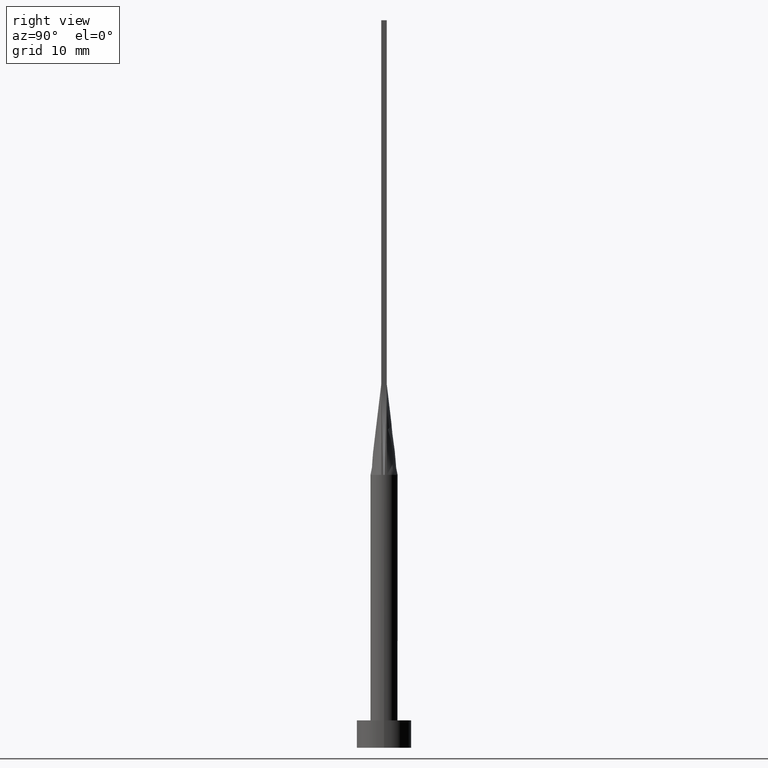
[diagram: clean part render]
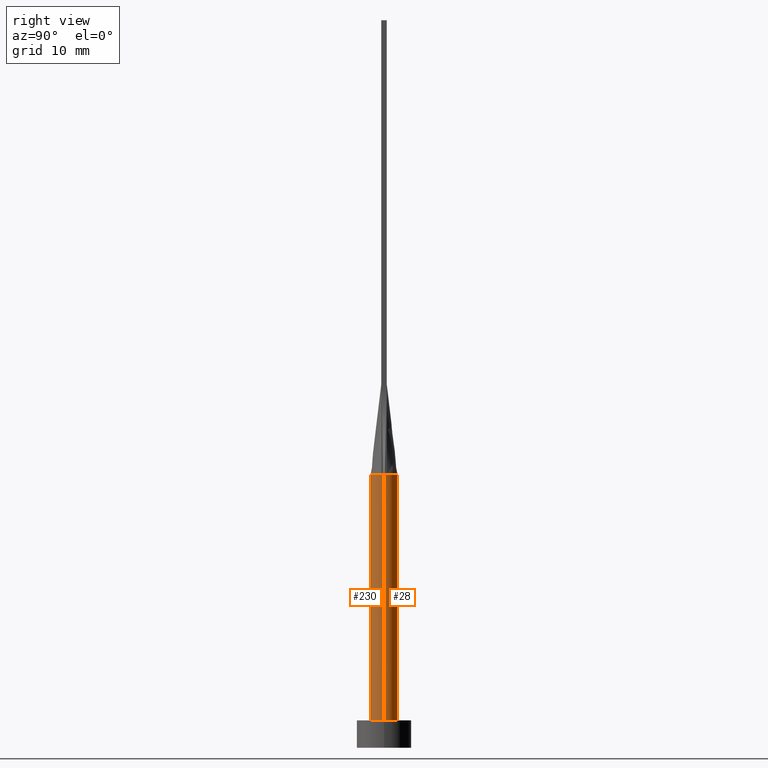
[diagram: same view with one multi-face feature highlighted, each face labeled with its STEP entity id]
A machine part, right view. The highlighted faces form ONE feature: a constant-radius fillet chain: 2 tangent blend faces with common blend radius 1.5 mm. The faces share edges in the B-rep.
Their STEP definitions:
[1] entity #28 (Cylinder):
#2 = CARTESIAN_POINT ( 'NONE',  ( 1.499815225192203672, 3.473831651285826596E-16, 30.00000000000000000 ) ) ;
#8 = VERTEX_POINT ( 'NONE', #163 ) ;
#10 = CARTESIAN_POINT ( 'NONE',  ( 1.500000000000000222, 1.836970198721030181E-16, 30.00000000000000000 ) ) ;
#14 = CIRCLE ( 'NONE', #216, 1.500000000000000222 ) ;
#22 = VERTEX_POINT ( 'NONE', #295 ) ;
#26 = CARTESIAN_POINT ( 'NONE',  ( 1.466825456746648992, 0.3143198820638501978, 30.00000000000000000 ) ) ;
#28 = ADVANCED_FACE ( 'NONE', ( #326 ), #504, .T. ) ;
#30 = VERTEX_POINT ( 'NONE', #244 ) ;
#31 = CARTESIAN_POINT ( 'NONE',  ( 1.261673556793541540, 0.8246322331683844098, 29.99999999999998579 ) ) ;
#36 = CARTESIAN_POINT ( 'NONE',  ( 1.398339371956842880, 0.5625704264602660043, 29.99999999999999645 ) ) ;
#37 = DIRECTION ( 'NONE',  ( -0.000000000000000000, -0.000000000000000000, -1.000000000000000000 ) ) ;
#43 = EDGE_LOOP ( 'NONE', ( #205, #306, #133, #379, #442, #116 ) ) ;
#54 = AXIS2_PLACEMENT_3D ( 'NONE', #106, #287, #465 ) ;
#61 = DIRECTION ( 'NONE',  ( 1.000000000000000000, 0.000000000000000000, 0.000000000000000000 ) ) ;
#73 = VERTEX_POINT ( 'NONE', #269 ) ;
#78 = CARTESIAN_POINT ( 'NONE',  ( -0.9173979595380679086, 1.199399801402030397, 30.00000000000000000 ) ) ;
#80 = EDGE_CURVE ( 'NONE', #8, #73, #444, .T. ) ;
#89 = VERTEX_POINT ( 'NONE', #170 ) ;
#97 = DIRECTION ( 'NONE',  ( 0.000000000000000000, 0.000000000000000000, 1.000000000000000000 ) ) ;
#106 = CARTESIAN_POINT ( 'NONE',  ( 0.000000000000000000, 0.000000000000000000, 30.00000000000000000 ) ) ;
#109 = DIRECTION ( 'NONE',  ( 1.000000000000000000, 0.000000000000000000, 0.000000000000000000 ) ) ;
#116 = ORIENTED_EDGE ( 'NONE', *, *, #187, .F. ) ;
#119 = B_SPLINE_CURVE_WITH_KNOTS ( 'NONE', 3,
 ( #26, #168, #36, #31, #122, #345, #397, #218, #481, #572, #212, #213, #78, #259, #437, #520, #568, #172 ),
 .UNSPECIFIED., .F., .F.,
 ( 4, 2, 2, 2, 2, 2, 2, 2, 4 ),
 ( 0.000000000000000000, 0.1249999999999999445, 0.2499999999999998890, 0.3749999999999998890, 0.4999999999999998890, 0.6249999999999998890, 0.7500000000000000000, 0.8749999999999998890, 1.000000000000000000 ),
 .UNSPECIFIED. ) ;
#122 = CARTESIAN_POINT ( 'NONE',  ( 1.167251067653077401, 0.9579686032593092149, 30.00000000000000355 ) ) ;
#132 = CARTESIAN_POINT ( 'NONE',  ( -1.500000000000000222, 0.000000000000000000, 30.00000000000000000 ) ) ;
#133 = ORIENTED_EDGE ( 'NONE', *, *, #349, .T. ) ;
#153 = EDGE_CURVE ( 'NONE', #356, #30, #435, .T. ) ;
#163 = CARTESIAN_POINT ( 'NONE',  ( -1.499815225192203672, -3.718617114388451945E-16, 30.00000000000000000 ) ) ;
#168 = CARTESIAN_POINT ( 'NONE',  ( 1.441093865018553410, 0.4338058282182615244, 30.00000000000000711 ) ) ;
#170 = CARTESIAN_POINT ( 'NONE',  ( 1.500000000000000222, 1.836970198721030181E-16, 3.000000000000000000 ) ) ;
#172 = CARTESIAN_POINT ( 'NONE',  ( -1.466842056764351865, 0.3143233427268645186, 30.00000000000000000 ) ) ;
#180 = AXIS2_PLACEMENT_3D ( 'NONE', #387, #301, #260 ) ;
#187 = EDGE_CURVE ( 'NONE', #30, #22, #119, .T. ) ;
#205 = ORIENTED_EDGE ( 'NONE', *, *, #153, .F. ) ;
#212 = CARTESIAN_POINT ( 'NONE',  ( -0.4035854070682471928, 1.457676878506885432, 30.00000000000000711 ) ) ;
#213 = CARTESIAN_POINT ( 'NONE',  ( -0.7614511870148460426, 1.306864626778804661, 30.00000000000001776 ) ) ;
#216 = AXIS2_PLACEMENT_3D ( 'NONE', #234, #97, #61 ) ;
#218 = CARTESIAN_POINT ( 'NONE',  ( 0.4035854070682468042, 1.457676878506885654, 30.00000000000000000 ) ) ;
#234 = CARTESIAN_POINT ( 'NONE',  ( 0.000000000000000000, 0.000000000000000000, 3.000000000000000000 ) ) ;
#244 = CARTESIAN_POINT ( 'NONE',  ( 1.466825456746648992, 0.3143198820638501978, 30.00000000000000000 ) ) ;
#259 = CARTESIAN_POINT ( 'NONE',  ( -1.167251067653078289, 0.9579686032593087708, 30.00000000000001776 ) ) ;
#260 = DIRECTION ( 'NONE',  ( 1.000000000000000000, 0.000000000000000000, 0.000000000000000000 ) ) ;
#269 = CARTESIAN_POINT ( 'NONE',  ( -1.500000000000000222, 0.000000000000000000, 3.000000000000000000 ) ) ;
#287 = DIRECTION ( 'NONE',  ( -0.000000000000000000, -0.000000000000000000, -1.000000000000000000 ) ) ;
#295 = CARTESIAN_POINT ( 'NONE',  ( -1.466842056764351865, 0.3143233427268645186, 30.00000000000000000 ) ) ;
#296 = EDGE_CURVE ( 'NONE', #22, #8, #563, .T. ) ;
#301 = DIRECTION ( 'NONE',  ( 0.000000000000000000, 0.000000000000000000, 1.000000000000000000 ) ) ;
#306 = ORIENTED_EDGE ( 'NONE', *, *, #438, .T. ) ;
#326 = FACE_OUTER_BOUND ( 'NONE', #43, .T. ) ;
#345 = CARTESIAN_POINT ( 'NONE',  ( 0.9173979595380679086, 1.199399801402031285, 30.00000000000001066 ) ) ;
#349 = EDGE_CURVE ( 'NONE', #89, #73, #14, .T. ) ;
#356 = VERTEX_POINT ( 'NONE', #2 ) ;
#364 = DIRECTION ( 'NONE',  ( 0.000000000000000000, 0.000000000000000000, 1.000000000000000000 ) ) ;
#379 = ORIENTED_EDGE ( 'NONE', *, *, #80, .F. ) ;
#387 = CARTESIAN_POINT ( 'NONE',  ( 0.000000000000000000, 0.000000000000000000, 30.00000000000000000 ) ) ;
#390 = VECTOR ( 'NONE', #37, 1000.000000000000000 ) ;
#397 = CARTESIAN_POINT ( 'NONE',  ( 0.7614511870148451544, 1.306864626778804883, 30.00000000000000711 ) ) ;
#429 = DIRECTION ( 'NONE',  ( -0.000000000000000000, -0.000000000000000000, -1.000000000000000000 ) ) ;
#435 = CIRCLE ( 'NONE', #180, 1.500000000000000222 ) ;
#437 = CARTESIAN_POINT ( 'NONE',  ( -1.261673556793542872, 0.8246322331683846318, 30.00000000000000711 ) ) ;
#438 = EDGE_CURVE ( 'NONE', #356, #89, #510, .T. ) ;
#442 = ORIENTED_EDGE ( 'NONE', *, *, #296, .F. ) ;
#444 = LINE ( 'NONE', #132, #390 ) ;
#465 = DIRECTION ( 'NONE',  ( -1.000000000000000000, 0.000000000000000000, 0.000000000000000000 ) ) ;
#481 = CARTESIAN_POINT ( 'NONE',  ( 0.2021039475585061640, 1.500000000000000222, 30.00000000000000711 ) ) ;
#495 = CARTESIAN_POINT ( 'NONE',  ( 0.000000000000000000, 0.000000000000000000, 30.00000000000000000 ) ) ;
#500 = AXIS2_PLACEMENT_3D ( 'NONE', #495, #364, #109 ) ;
#504 = CYLINDRICAL_SURFACE ( 'NONE', #54, 1.500000000000000222 ) ;
#510 = LINE ( 'NONE', #10, #558 ) ;
#520 = CARTESIAN_POINT ( 'NONE',  ( -1.398339371956843102, 0.5625704264602656712, 29.99999999999999289 ) ) ;
#558 = VECTOR ( 'NONE', #429, 1000.000000000000000 ) ;
#563 = CIRCLE ( 'NONE', #500, 1.500000000000000222 ) ;
#568 = CARTESIAN_POINT ( 'NONE',  ( -1.441093865018553410, 0.4338058282182611913, 29.99999999999999289 ) ) ;
#572 = CARTESIAN_POINT ( 'NONE',  ( -0.2021039475585064971, 1.499999999999999556, 30.00000000000001066 ) ) ;
[2] entity #230 (Cylinder):
#1 = CIRCLE ( 'NONE', #76, 1.500000000000000222 ) ;
#2 = CARTESIAN_POINT ( 'NONE',  ( 1.499815225192203672, 3.473831651285826596E-16, 30.00000000000000000 ) ) ;
#7 = CYLINDRICAL_SURFACE ( 'NONE', #391, 1.500000000000000222 ) ;
#8 = VERTEX_POINT ( 'NONE', #163 ) ;
#10 = CARTESIAN_POINT ( 'NONE',  ( 1.500000000000000222, 1.836970198721030181E-16, 30.00000000000000000 ) ) ;
#18 = DIRECTION ( 'NONE',  ( -1.000000000000000000, 0.000000000000000000, 0.000000000000000000 ) ) ;
#37 = DIRECTION ( 'NONE',  ( -0.000000000000000000, -0.000000000000000000, -1.000000000000000000 ) ) ;
#48 = CARTESIAN_POINT ( 'NONE',  ( 0.000000000000000000, 0.000000000000000000, 30.00000000000000000 ) ) ;
#62 = ORIENTED_EDGE ( 'NONE', *, *, #80, .T. ) ;
#65 = DIRECTION ( 'NONE',  ( 1.000000000000000000, 0.000000000000000000, 0.000000000000000000 ) ) ;
#73 = VERTEX_POINT ( 'NONE', #269 ) ;
#76 = AXIS2_PLACEMENT_3D ( 'NONE', #291, #286, #65 ) ;
#80 = EDGE_CURVE ( 'NONE', #8, #73, #444, .T. ) ;
#89 = VERTEX_POINT ( 'NONE', #170 ) ;
#100 = CARTESIAN_POINT ( 'NONE',  ( 1.466854622690809462, -0.3143260906982852099, 30.00000000000000000 ) ) ;
#126 = DIRECTION ( 'NONE',  ( 0.000000000000000000, 0.000000000000000000, 1.000000000000000000 ) ) ;
#132 = CARTESIAN_POINT ( 'NONE',  ( -1.500000000000000222, 0.000000000000000000, 30.00000000000000000 ) ) ;
#140 = FACE_OUTER_BOUND ( 'NONE', #559, .T. ) ;
#163 = CARTESIAN_POINT ( 'NONE',  ( -1.499815225192203672, -3.718617114388451945E-16, 30.00000000000000000 ) ) ;
#164 = EDGE_CURVE ( 'NONE', #73, #89, #475, .T. ) ;
#170 = CARTESIAN_POINT ( 'NONE',  ( 1.500000000000000222, 1.836970198721030181E-16, 3.000000000000000000 ) ) ;
#208 = VERTEX_POINT ( 'NONE', #100 ) ;
#226 = ORIENTED_EDGE ( 'NONE', *, *, #164, .T. ) ;
#230 = ADVANCED_FACE ( 'NONE', ( #140 ), #7, .T. ) ;
#233 = DIRECTION ( 'NONE',  ( 1.000000000000000000, 3.552713678800500929E-15, 0.000000000000000000 ) ) ;
#269 = CARTESIAN_POINT ( 'NONE',  ( -1.500000000000000222, 0.000000000000000000, 3.000000000000000000 ) ) ;
#278 = CARTESIAN_POINT ( 'NONE',  ( -1.466837926445876628, -0.3143226152917824034, 30.00000000000000000 ) ) ;
#286 = DIRECTION ( 'NONE',  ( 0.000000000000000000, 0.000000000000000000, 1.000000000000000000 ) ) ;
#291 = CARTESIAN_POINT ( 'NONE',  ( 0.000000000000000000, 0.000000000000000000, 30.00000000000000000 ) ) ;
#297 = AXIS2_PLACEMENT_3D ( 'NONE', #564, #126, #394 ) ;
#304 = EDGE_CURVE ( 'NONE', #351, #208, #1, .T. ) ;
#313 = ORIENTED_EDGE ( 'NONE', *, *, #304, .F. ) ;
#321 = DIRECTION ( 'NONE',  ( -0.000000000000000000, -0.000000000000000000, -1.000000000000000000 ) ) ;
#333 = CARTESIAN_POINT ( 'NONE',  ( 0.000000000000000000, 0.000000000000000000, 30.00000000000000000 ) ) ;
#340 = EDGE_CURVE ( 'NONE', #8, #351, #486, .T. ) ;
#351 = VERTEX_POINT ( 'NONE', #278 ) ;
#356 = VERTEX_POINT ( 'NONE', #2 ) ;
#374 = CIRCLE ( 'NONE', #575, 1.500000000000000222 ) ;
#390 = VECTOR ( 'NONE', #37, 1000.000000000000000 ) ;
#391 = AXIS2_PLACEMENT_3D ( 'NONE', #333, #321, #18 ) ;
#394 = DIRECTION ( 'NONE',  ( 1.000000000000000000, 0.000000000000000000, 0.000000000000000000 ) ) ;
#403 = ORIENTED_EDGE ( 'NONE', *, *, #340, .F. ) ;
#426 = AXIS2_PLACEMENT_3D ( 'NONE', #538, #459, #463 ) ;
#429 = DIRECTION ( 'NONE',  ( -0.000000000000000000, -0.000000000000000000, -1.000000000000000000 ) ) ;
#438 = EDGE_CURVE ( 'NONE', #356, #89, #510, .T. ) ;
#444 = LINE ( 'NONE', #132, #390 ) ;
#455 = EDGE_CURVE ( 'NONE', #208, #356, #374, .T. ) ;
#459 = DIRECTION ( 'NONE',  ( 0.000000000000000000, 0.000000000000000000, 1.000000000000000000 ) ) ;
#463 = DIRECTION ( 'NONE',  ( 1.000000000000000000, 0.000000000000000000, 0.000000000000000000 ) ) ;
#475 = CIRCLE ( 'NONE', #297, 1.500000000000000222 ) ;
#486 = CIRCLE ( 'NONE', #426, 1.500000000000000222 ) ;
#492 = ORIENTED_EDGE ( 'NONE', *, *, #455, .F. ) ;
#510 = LINE ( 'NONE', #10, #558 ) ;
#538 = CARTESIAN_POINT ( 'NONE',  ( 0.000000000000000000, 0.000000000000000000, 30.00000000000000000 ) ) ;
#540 = DIRECTION ( 'NONE',  ( 0.000000000000000000, 0.000000000000000000, 1.000000000000000000 ) ) ;
#558 = VECTOR ( 'NONE', #429, 1000.000000000000000 ) ;
#559 = EDGE_LOOP ( 'NONE', ( #579, #492, #313, #403, #62, #226 ) ) ;
#564 = CARTESIAN_POINT ( 'NONE',  ( 0.000000000000000000, 0.000000000000000000, 3.000000000000000000 ) ) ;
#575 = AXIS2_PLACEMENT_3D ( 'NONE', #48, #540, #233 ) ;
#579 = ORIENTED_EDGE ( 'NONE', *, *, #438, .F. ) ;